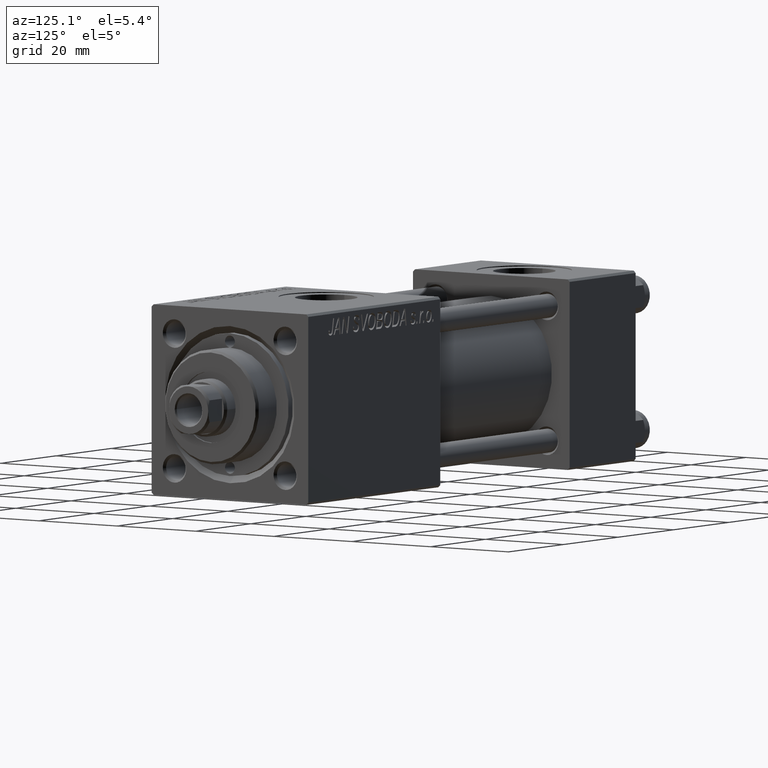
[diagram: clean part render]
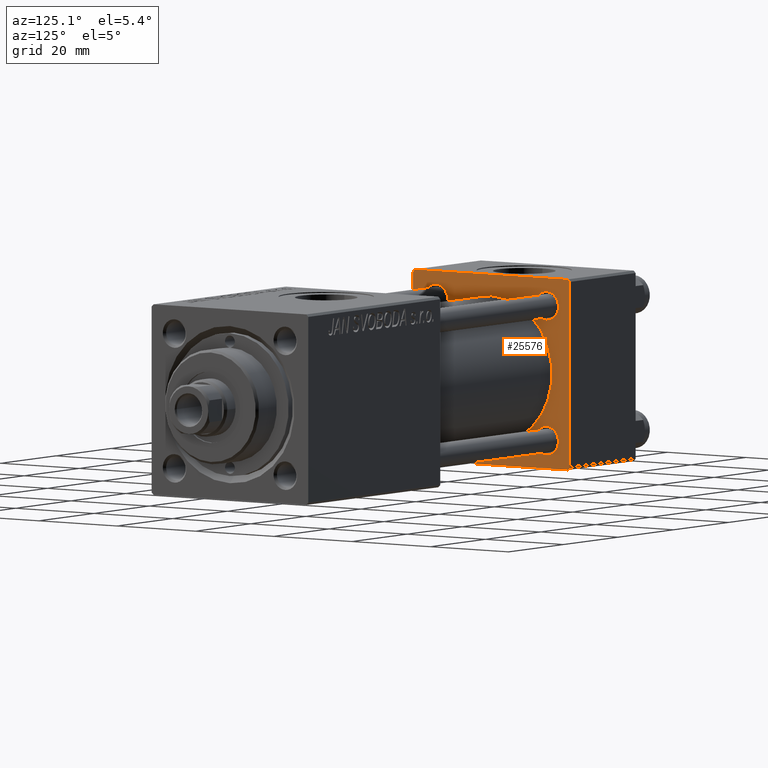
[diagram: same view with one face highlighted and labeled with its STEP entity id]
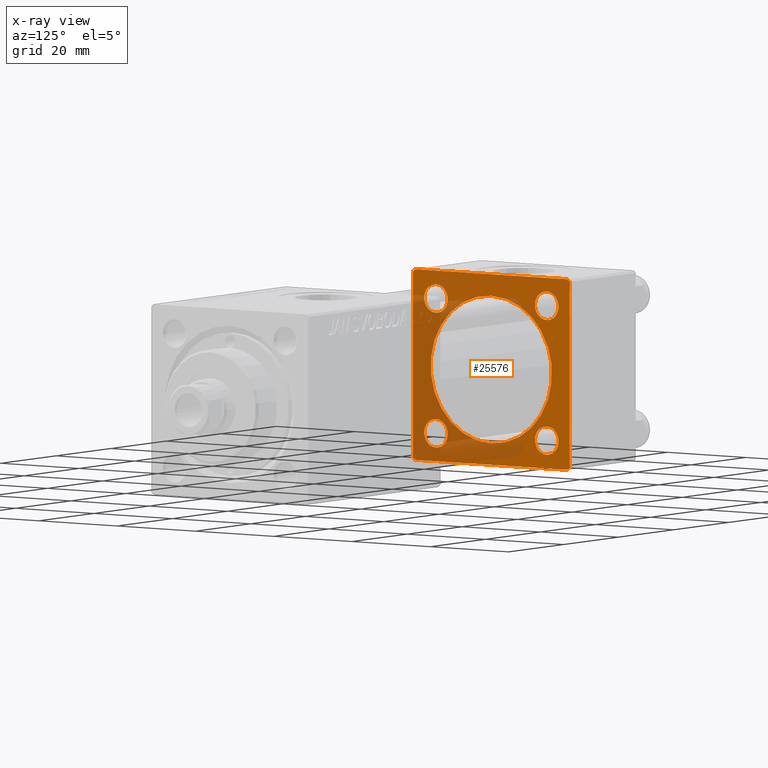
[diagram: x-ray of the same camera — body ghosted, the highlighted face saturated]
A machine part, auxiliary view. The second image highlights one B-rep face of the part: STEP entity #25576.
The next image is the same camera in x-ray: the body ghosted, the highlighted face saturated — about 41% of this face is hidden behind the body in this view.
In plain terms, the highlighted planar face has unit normal (-1, 0, 0).
Its self-contained STEP definition (entity closure, byte-faithful):
#31 = VERTEX_POINT ( 'NONE', #9986 ) ;
#195 = EDGE_LOOP ( 'NONE', ( #26099, #1191, #15146, #849, #3901, #43236, #44504, #29475 ) ) ;
#425 = EDGE_LOOP ( 'NONE', ( #29140, #41081 ) ) ;
#449 = CIRCLE ( 'NONE', #11014, 3.000000000000004441 ) ;
#569 = CARTESIAN_POINT ( 'NONE',  ( 24.00000000000000000, -2.602085213965210642E-15, 15.50000000000000000 ) ) ;
#771 = VERTEX_POINT ( 'NONE', #40874 ) ;
#849 = ORIENTED_EDGE ( 'NONE', *, *, #11488, .T. ) ;
#1191 = ORIENTED_EDGE ( 'NONE', *, *, #49514, .T. ) ;
#1281 = CARTESIAN_POINT ( 'NONE',  ( 24.00000000000000000, -14.14999999999999503, -11.15000000000000036 ) ) ;
#1526 = DIRECTION ( 'NONE',  ( 0.000000000000000000, -0.7071067811865425767, 0.7071067811865525687 ) ) ;
#1577 = AXIS2_PLACEMENT_3D ( 'NONE', #20643, #26847, #30404 ) ;
#1909 = DIRECTION ( 'NONE',  ( -1.000000000000000000, -0.000000000000000000, -0.000000000000000000 ) ) ;
#2124 = VECTOR ( 'NONE', #36945, 1000.000000000000114 ) ;
#2704 = DIRECTION ( 'NONE',  ( 0.000000000000000000, 0.000000000000000000, 1.000000000000000000 ) ) ;
#2849 = DIRECTION ( 'NONE',  ( 1.000000000000000000, 0.000000000000000000, 0.000000000000000000 ) ) ;
#3207 = CIRCLE ( 'NONE', #1577, 15.50000000000000000 ) ;
#3219 = EDGE_LOOP ( 'NONE', ( #36966, #18640 ) ) ;
#3277 = VERTEX_POINT ( 'NONE', #29745 ) ;
#3901 = ORIENTED_EDGE ( 'NONE', *, *, #14199, .T. ) ;
#4574 = EDGE_LOOP ( 'NONE', ( #42845, #34963 ) ) ;
#4982 = VERTEX_POINT ( 'NONE', #12691 ) ;
#5305 = CARTESIAN_POINT ( 'NONE',  ( 24.00000000000000000, -19.49999999999999289, 19.99999999999998934 ) ) ;
#5780 = CARTESIAN_POINT ( 'NONE',  ( 24.00000000000000000, 20.00000000000000000, -19.50000000000002132 ) ) ;
#5979 = FACE_BOUND ( 'NONE', #3219, .T. ) ;
#5992 = AXIS2_PLACEMENT_3D ( 'NONE', #20879, #32581, #9453 ) ;
#6410 = DIRECTION ( 'NONE',  ( 0.000000000000000000, -1.000000000000000000, 1.734723475976807094E-16 ) ) ;
#6773 = DIRECTION ( 'NONE',  ( -1.000000000000000000, -0.000000000000000000, -0.000000000000000000 ) ) ;
#6921 = DIRECTION ( 'NONE',  ( 0.000000000000000000, 0.000000000000000000, 1.000000000000000000 ) ) ;
#7515 = DIRECTION ( 'NONE',  ( 0.000000000000000000, 0.7071067811865401342, -0.7071067811865549002 ) ) ;
#8056 = CIRCLE ( 'NONE', #26730, 2.999999999999976463 ) ;
#8573 = AXIS2_PLACEMENT_3D ( 'NONE', #41356, #6773, #2704 ) ;
#8747 = VECTOR ( 'NONE', #13257, 1000.000000000000000 ) ;
#9043 = FACE_OUTER_BOUND ( 'NONE', #195, .T. ) ;
#9059 = DIRECTION ( 'NONE',  ( 0.000000000000000000, 0.000000000000000000, 1.000000000000000000 ) ) ;
#9249 = CARTESIAN_POINT ( 'NONE',  ( 24.00000000000000000, -20.00000000000000355, 19.49999999999998224 ) ) ;
#9298 = CARTESIAN_POINT ( 'NONE',  ( 24.00000000000000000, 14.14999999999999858, -14.15000000000000036 ) ) ;
#9356 = CIRCLE ( 'NONE', #8573, 3.000000000000004441 ) ;
#9453 = DIRECTION ( 'NONE',  ( 0.000000000000000000, 0.000000000000000000, 1.000000000000000000 ) ) ;
#9986 = CARTESIAN_POINT ( 'NONE',  ( 24.00000000000000000, 14.14999999999999858, -11.15000000000002700 ) ) ;
#10074 = VERTEX_POINT ( 'NONE', #42530 ) ;
#10319 = ORIENTED_EDGE ( 'NONE', *, *, #37641, .T. ) ;
#10329 = DIRECTION ( 'NONE',  ( -0.000000000000000000, 0.7071067811865524577, 0.7071067811865426878 ) ) ;
#10372 = VECTOR ( 'NONE', #10329, 1000.000000000000000 ) ;
#10473 = CARTESIAN_POINT ( 'NONE',  ( 24.00000000000000000, -14.14999999999999503, 14.15000000000000391 ) ) ;
#10482 = VECTOR ( 'NONE', #1526, 999.9999999999998863 ) ;
#10553 = CARTESIAN_POINT ( 'NONE',  ( 24.00000000000000000, 14.14999999999999858, 17.14999999999997726 ) ) ;
#10713 = CARTESIAN_POINT ( 'NONE',  ( 24.00000000000000000, -20.00000000000000355, 19.99999999999998934 ) ) ;
#10768 = CIRCLE ( 'NONE', #37587, 15.50000000000000000 ) ;
#11014 = AXIS2_PLACEMENT_3D ( 'NONE', #22985, #46120, #38491 ) ;
#11331 = EDGE_CURVE ( 'NONE', #26288, #22316, #50095, .T. ) ;
#11488 = EDGE_CURVE ( 'NONE', #39736, #3277, #36351, .T. ) ;
#12290 = VERTEX_POINT ( 'NONE', #34483 ) ;
#12691 = CARTESIAN_POINT ( 'NONE',  ( 24.00000000000000000, -14.14999999999999503, 11.15000000000000036 ) ) ;
#13257 = DIRECTION ( 'NONE',  ( 0.000000000000000000, 0.000000000000000000, -1.000000000000000000 ) ) ;
#13327 = ORIENTED_EDGE ( 'NONE', *, *, #44520, .T. ) ;
#14199 = EDGE_CURVE ( 'NONE', #3277, #34342, #25380, .T. ) ;
#14477 = DIRECTION ( 'NONE',  ( 0.000000000000000000, 0.000000000000000000, 1.000000000000000000 ) ) ;
#14916 = CARTESIAN_POINT ( 'NONE',  ( 24.00000000000000000, 20.00000000000000000, -19.50000000000002132 ) ) ;
#15146 = ORIENTED_EDGE ( 'NONE', *, *, #35130, .F. ) ;
#15794 = CARTESIAN_POINT ( 'NONE',  ( 24.00000000000000000, 14.14999999999999858, 11.15000000000002700 ) ) ;
#15836 = AXIS2_PLACEMENT_3D ( 'NONE', #32905, #24773, #25037 ) ;
#15935 = VERTEX_POINT ( 'NONE', #14916 ) ;
#16014 = VECTOR ( 'NONE', #7515, 1000.000000000000000 ) ;
#16130 = AXIS2_PLACEMENT_3D ( 'NONE', #10473, #46039, #22657 ) ;
#16905 = ORIENTED_EDGE ( 'NONE', *, *, #22528, .T. ) ;
#17439 = CARTESIAN_POINT ( 'NONE',  ( 24.00000000000000000, -20.00000000000000000, -19.49999999999999645 ) ) ;
#17773 = CARTESIAN_POINT ( 'NONE',  ( 24.00000000000000000, 19.50000000000000000, 20.00000000000000000 ) ) ;
#18187 = CARTESIAN_POINT ( 'NONE',  ( 24.00000000000000000, -19.50000000000000711, -20.00000000000000000 ) ) ;
#18478 = CARTESIAN_POINT ( 'NONE',  ( 24.00000000000000000, -20.00000000000000355, 19.49999999999998224 ) ) ;
#18640 = ORIENTED_EDGE ( 'NONE', *, *, #40359, .F. ) ;
#18826 = VECTOR ( 'NONE', #43705, 1000.000000000000000 ) ;
#18996 = EDGE_LOOP ( 'NONE', ( #10319, #13327 ) ) ;
#20173 = EDGE_CURVE ( 'NONE', #22406, #43716, #10768, .T. ) ;
#20306 = VERTEX_POINT ( 'NONE', #15794 ) ;
#20643 = CARTESIAN_POINT ( 'NONE',  ( 24.00000000000000000, -2.602085213965210642E-15, 0.000000000000000000 ) ) ;
#20879 = CARTESIAN_POINT ( 'NONE',  ( 24.00000000000000000, -14.14999999999999503, -14.15000000000000391 ) ) ;
#21140 = DIRECTION ( 'NONE',  ( 0.000000000000000000, 0.000000000000000000, 1.000000000000000000 ) ) ;
#21351 = DIRECTION ( 'NONE',  ( -1.000000000000000000, -0.000000000000000000, -0.000000000000000000 ) ) ;
#21636 = CARTESIAN_POINT ( 'NONE',  ( 24.00000000000000000, 20.00000000000000000, 20.00000000000000000 ) ) ;
#22316 = VERTEX_POINT ( 'NONE', #17439 ) ;
#22406 = VERTEX_POINT ( 'NONE', #569 ) ;
#22485 = EDGE_CURVE ( 'NONE', #40770, #39293, #39291, .T. ) ;
#22514 = AXIS2_PLACEMENT_3D ( 'NONE', #25418, #21351, #14477 ) ;
#22528 = EDGE_CURVE ( 'NONE', #20306, #44385, #26295, .T. ) ;
#22657 = DIRECTION ( 'NONE',  ( 0.000000000000000000, 0.000000000000000000, 1.000000000000000000 ) ) ;
#22666 = VECTOR ( 'NONE', #49839, 1000.000000000000000 ) ;
#22985 = CARTESIAN_POINT ( 'NONE',  ( 24.00000000000000000, -14.14999999999999503, 14.15000000000000391 ) ) ;
#23394 = VECTOR ( 'NONE', #6410, 1000.000000000000000 ) ;
#24456 = DIRECTION ( 'NONE',  ( -1.000000000000000000, -0.000000000000000000, -0.000000000000000000 ) ) ;
#24531 = PLANE ( 'NONE',  #15836 ) ;
#24773 = DIRECTION ( 'NONE',  ( -1.000000000000000000, 0.000000000000000000, -0.000000000000000000 ) ) ;
#24789 = CARTESIAN_POINT ( 'NONE',  ( 24.00000000000000000, -14.14999999999999503, -17.15000000000000924 ) ) ;
#24952 = LINE ( 'NONE', #21636, #8747 ) ;
#25037 = DIRECTION ( 'NONE',  ( -0.000000000000000000, 0.000000000000000000, 1.000000000000000000 ) ) ;
#25380 = LINE ( 'NONE', #48264, #18826 ) ;
#25418 = CARTESIAN_POINT ( 'NONE',  ( 24.00000000000000000, 14.14999999999999858, -14.15000000000000036 ) ) ;
#25422 = EDGE_CURVE ( 'NONE', #39293, #40770, #9356, .T. ) ;
#25576 = ADVANCED_FACE ( 'NONE', ( #43859, #44606, #36977, #40792, #5979, #9043 ), #24531, .F. ) ;
#26099 = ORIENTED_EDGE ( 'NONE', *, *, #50035, .F. ) ;
#26288 = VERTEX_POINT ( 'NONE', #18478 ) ;
#26295 = CIRCLE ( 'NONE', #32791, 2.999999999999973355 ) ;
#26730 = AXIS2_PLACEMENT_3D ( 'NONE', #9298, #1909, #9059 ) ;
#26847 = DIRECTION ( 'NONE',  ( 1.000000000000000000, 0.000000000000000000, 0.000000000000000000 ) ) ;
#27387 = CIRCLE ( 'NONE', #22514, 2.999999999999976463 ) ;
#27550 = EDGE_CURVE ( 'NONE', #34342, #26288, #48889, .T. ) ;
#28516 = CARTESIAN_POINT ( 'NONE',  ( 24.00000000000000000, 14.14999999999999858, 14.15000000000000036 ) ) ;
#29140 = ORIENTED_EDGE ( 'NONE', *, *, #25422, .T. ) ;
#29216 = EDGE_LOOP ( 'NONE', ( #16905, #39519 ) ) ;
#29475 = ORIENTED_EDGE ( 'NONE', *, *, #34582, .T. ) ;
#29745 = CARTESIAN_POINT ( 'NONE',  ( 24.00000000000000000, 19.50000000000000000, 20.00000000000000000 ) ) ;
#30404 = DIRECTION ( 'NONE',  ( 0.000000000000000000, 0.000000000000000000, 1.000000000000000000 ) ) ;
#30825 = EDGE_CURVE ( 'NONE', #31, #12290, #27387, .T. ) ;
#32581 = DIRECTION ( 'NONE',  ( -1.000000000000000000, -0.000000000000000000, -0.000000000000000000 ) ) ;
#32791 = AXIS2_PLACEMENT_3D ( 'NONE', #28516, #24456, #21140 ) ;
#32905 = CARTESIAN_POINT ( 'NONE',  ( 24.00000000000000000, 0.000000000000000000, 0.000000000000000000 ) ) ;
#33121 = DIRECTION ( 'NONE',  ( 0.000000000000000000, 0.000000000000000000, 1.000000000000000000 ) ) ;
#34087 = LINE ( 'NONE', #41227, #23394 ) ;
#34342 = VERTEX_POINT ( 'NONE', #5305 ) ;
#34483 = CARTESIAN_POINT ( 'NONE',  ( 24.00000000000000000, 14.14999999999999858, -17.14999999999997726 ) ) ;
#34582 = EDGE_CURVE ( 'NONE', #22316, #771, #42338, .T. ) ;
#34963 = ORIENTED_EDGE ( 'NONE', *, *, #30825, .T. ) ;
#35130 = EDGE_CURVE ( 'NONE', #39736, #15935, #24952, .T. ) ;
#35365 = CIRCLE ( 'NONE', #49155, 2.999999999999973355 ) ;
#36140 = VERTEX_POINT ( 'NONE', #39907 ) ;
#36351 = LINE ( 'NONE', #17773, #10482 ) ;
#36945 = DIRECTION ( 'NONE',  ( -0.000000000000000000, -0.7071067811865500152, -0.7071067811865451302 ) ) ;
#36966 = ORIENTED_EDGE ( 'NONE', *, *, #20173, .F. ) ;
#36977 = FACE_BOUND ( 'NONE', #18996, .T. ) ;
#37587 = AXIS2_PLACEMENT_3D ( 'NONE', #41743, #2849, #6921 ) ;
#37641 = EDGE_CURVE ( 'NONE', #4982, #10074, #47788, .T. ) ;
#38491 = DIRECTION ( 'NONE',  ( 0.000000000000000000, 0.000000000000000000, 1.000000000000000000 ) ) ;
#39291 = CIRCLE ( 'NONE', #5992, 3.000000000000004441 ) ;
#39293 = VERTEX_POINT ( 'NONE', #24789 ) ;
#39315 = EDGE_CURVE ( 'NONE', #12290, #31, #8056, .T. ) ;
#39519 = ORIENTED_EDGE ( 'NONE', *, *, #44653, .T. ) ;
#39736 = VERTEX_POINT ( 'NONE', #45253 ) ;
#39907 = CARTESIAN_POINT ( 'NONE',  ( 24.00000000000000000, 19.50000000000000711, -20.00000000000000711 ) ) ;
#40359 = EDGE_CURVE ( 'NONE', #43716, #22406, #3207, .T. ) ;
#40770 = VERTEX_POINT ( 'NONE', #1281 ) ;
#40792 = FACE_BOUND ( 'NONE', #29216, .T. ) ;
#40874 = CARTESIAN_POINT ( 'NONE',  ( 24.00000000000000000, -19.50000000000000711, -20.00000000000000000 ) ) ;
#41081 = ORIENTED_EDGE ( 'NONE', *, *, #22485, .T. ) ;
#41227 = CARTESIAN_POINT ( 'NONE',  ( 24.00000000000000000, 20.00000000000000000, -20.00000000000000711 ) ) ;
#41356 = CARTESIAN_POINT ( 'NONE',  ( 24.00000000000000000, -14.14999999999999503, -14.15000000000000391 ) ) ;
#41743 = CARTESIAN_POINT ( 'NONE',  ( 24.00000000000000000, -2.602085213965210642E-15, 0.000000000000000000 ) ) ;
#42338 = LINE ( 'NONE', #18187, #16014 ) ;
#42530 = CARTESIAN_POINT ( 'NONE',  ( 24.00000000000000000, -14.14999999999999503, 17.15000000000000924 ) ) ;
#42845 = ORIENTED_EDGE ( 'NONE', *, *, #39315, .T. ) ;
#43236 = ORIENTED_EDGE ( 'NONE', *, *, #27550, .T. ) ;
#43705 = DIRECTION ( 'NONE',  ( 0.000000000000000000, -1.000000000000000000, -2.602085213965210149E-16 ) ) ;
#43716 = VERTEX_POINT ( 'NONE', #49422 ) ;
#43859 = FACE_BOUND ( 'NONE', #425, .T. ) ;
#44385 = VERTEX_POINT ( 'NONE', #10553 ) ;
#44504 = ORIENTED_EDGE ( 'NONE', *, *, #11331, .T. ) ;
#44520 = EDGE_CURVE ( 'NONE', #10074, #4982, #449, .T. ) ;
#44606 = FACE_BOUND ( 'NONE', #4574, .T. ) ;
#44653 = EDGE_CURVE ( 'NONE', #44385, #20306, #35365, .T. ) ;
#45253 = CARTESIAN_POINT ( 'NONE',  ( 24.00000000000000000, 20.00000000000000000, 19.49999999999999289 ) ) ;
#45802 = CARTESIAN_POINT ( 'NONE',  ( 24.00000000000000000, 14.14999999999999858, 14.15000000000000036 ) ) ;
#46039 = DIRECTION ( 'NONE',  ( -1.000000000000000000, -0.000000000000000000, -0.000000000000000000 ) ) ;
#46120 = DIRECTION ( 'NONE',  ( -1.000000000000000000, -0.000000000000000000, -0.000000000000000000 ) ) ;
#47788 = CIRCLE ( 'NONE', #16130, 3.000000000000004441 ) ;
#48264 = CARTESIAN_POINT ( 'NONE',  ( 24.00000000000000000, 20.00000000000000000, 20.00000000000000000 ) ) ;
#48889 = LINE ( 'NONE', #9249, #2124 ) ;
#48966 = LINE ( 'NONE', #5780, #10372 ) ;
#49122 = DIRECTION ( 'NONE',  ( -1.000000000000000000, -0.000000000000000000, -0.000000000000000000 ) ) ;
#49155 = AXIS2_PLACEMENT_3D ( 'NONE', #45802, #49122, #33121 ) ;
#49422 = CARTESIAN_POINT ( 'NONE',  ( 24.00000000000000000, -7.038826752868131828E-16, -15.50000000000000000 ) ) ;
#49514 = EDGE_CURVE ( 'NONE', #36140, #15935, #48966, .T. ) ;
#49839 = DIRECTION ( 'NONE',  ( 0.000000000000000000, 8.673617379884036705E-17, -1.000000000000000000 ) ) ;
#50035 = EDGE_CURVE ( 'NONE', #36140, #771, #34087, .T. ) ;
#50095 = LINE ( 'NONE', #10713, #22666 ) ;